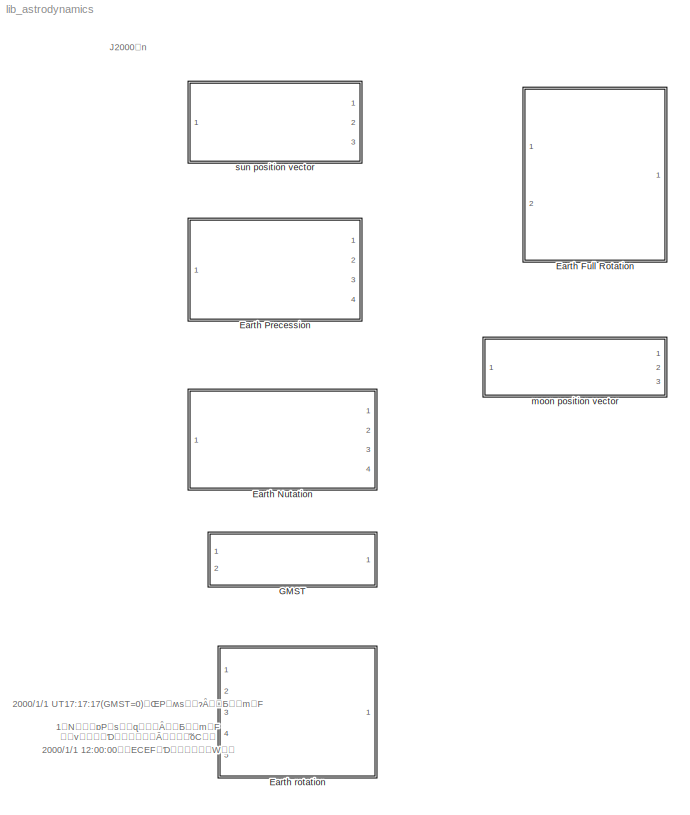
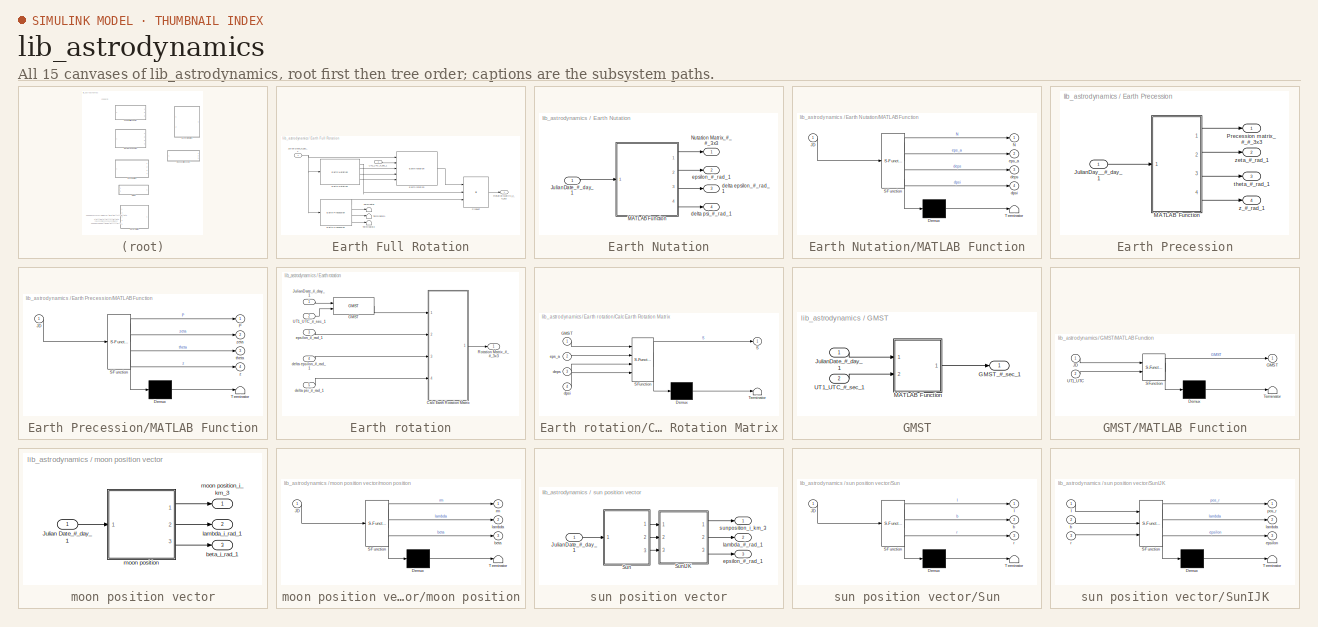
[diagram: thumbnail index - all 15 canvases of the model, root first then tree order]
MODEL lib_astrodynamics
KIND library
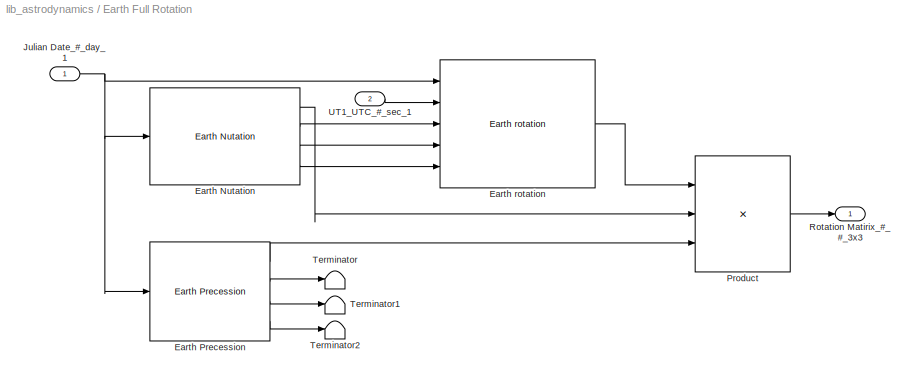
BLOCK [SubSystem] Earth Full Rotation
  FunctionWithSeparateData = off
  MaskHideContents = off
  MinAlgLoopOccurrences = off
  Opaque = off
  Ports = [2, 1]
  PropExecContextOutsideSubsystem = off
  RTWSystemCode = Auto
  RequestExecContextInheritance = off
  SID = 159
BLOCK [Reference] Earth Full Rotation/Earth Nutation  REF=lib_astrodynamics/Earth Nutation  (lib defined in mdl_a29f7b0aead9)
  FunctionWithSeparateData = off
  GeneratePreprocessorConditionals = off
  Ports = [1, 4]
  RTWMemSecDataConstants = Inherit from model
  RTWMemSecDataInternal = Inherit from model
  RTWMemSecDataParameters = Inherit from model
  RTWMemSecFuncExecute = Inherit from model
  RTWMemSecFuncInitTerm = Inherit from model
  SID = 167
  ShowPortLabels = FromPortIcon
  SourceBlock = lib_astrodynamics/Earth Nutation
  SourceType = SubSystem
  SystemSampleTime = -1
BLOCK [Reference] Earth Full Rotation/Earth Precession  REF=lib_astrodynamics/Earth Precession  (lib defined in mdl_a29f7b0aead9)
  FunctionWithSeparateData = off
  GeneratePreprocessorConditionals = off
  Ports = [1, 4]
  RTWMemSecDataConstants = Inherit from model
  RTWMemSecDataInternal = Inherit from model
  RTWMemSecDataParameters = Inherit from model
  RTWMemSecFuncExecute = Inherit from model
  RTWMemSecFuncInitTerm = Inherit from model
  SID = 169
  ShowPortLabels = FromPortIcon
  SourceBlock = lib_astrodynamics/Earth Precession
  SourceType = SubSystem
  SystemSampleTime = -1
BLOCK [Reference] Earth Full Rotation/Earth rotation  REF=lib_astrodynamics/Earth rotation  (lib defined in mdl_a29f7b0aead9)
  FunctionWithSeparateData = off
  GeneratePreprocessorConditionals = off
  Ports = [5, 1]
  RTWMemSecDataConstants = Inherit from model
  RTWMemSecDataInternal = Inherit from model
  RTWMemSecDataParameters = Inherit from model
  RTWMemSecFuncExecute = Inherit from model
  RTWMemSecFuncInitTerm = Inherit from model
  SID = 166
  ShowPortLabels = FromPortIcon
  SourceBlock = lib_astrodynamics/Earth rotation
  SourceType = SubSystem
  SystemSampleTime = -1
BLOCK [Inport] Earth Full Rotation/Julian Date_#_day_1
  IconDisplay = Port number
  SID = 160
BLOCK [Product] Earth Full Rotation/Product
  InputSameDT = off
  Inputs = 3
  Multiplication = Matrix(*)
  OutDataTypeStr = Inherit: Inherit via internal rule
  Ports = [3, 1]
  SID = 170
  SaturateOnIntegerOverflow = off
BLOCK [Outport] Earth Full Rotation/Rotation Matirix_#_#_3x3
  IconDisplay = Port number
  SID = 161
BLOCK [Terminator] Earth Full Rotation/Terminator
  SID = 171
BLOCK [Terminator] Earth Full Rotation/Terminator1
  SID = 172
BLOCK [Terminator] Earth Full Rotation/Terminator2
  SID = 173
BLOCK [Inport] Earth Full Rotation/UT1_UTC_#_sec_1
  IconDisplay = Port number
  Port = 2
  SID = 168
BLOCK [SubSystem] Earth Nutation
  FunctionWithSeparateData = off
  MaskHideContents = off
  MinAlgLoopOccurrences = off
  Opaque = off
  Ports = [1, 4]
  PropExecContextOutsideSubsystem = off
  RTWSystemCode = Auto
  RequestExecContextInheritance = off
  SID = 82
BLOCK [Inport] Earth Nutation/JulianDate_#_day_1
  IconDisplay = Port number
  SID = 83
BLOCK [SubSystem] Earth Nutation/MATLAB Function
  ErrorFcn = Stateflow.Translate.translate
  FunctionWithSeparateData = off
  MaskDescription = Embedded MATLAB block
  MaskDisplay = bgColor = Simulink.Root.ColorString2Rgb(get_param(gcbh, 'BackgroundColor')); image(imread('private/eml_membrane_16.png','png','BackgroundColor',bgColor(1:3)),'center'); disp([10 10 'Nutation']);
  MaskHideContents = off
  MaskIconFrame = on
  MaskIconOpaque = off
  MaskIconRotate = none
  MaskIconUnits = normalized
  MaskPortRotate = default
  MaskSelfModifiable = on
  MaskType = Stateflow
  MinAlgLoopOccurrences = off
  Opaque = off
  PermitHierarchicalResolution = ExplicitOnly
  Ports = [1, 4]
  PropExecContextOutsideSubsystem = off
  RTWSystemCode = Auto
  RequestExecContextInheritance = off
  SID = 84
  TreatAsAtomicUnit = on
BLOCK [Demux] Earth Nutation/MATLAB Function/ Demux 
  Outputs = 1
  Ports = [1, 1]
  SID = 84::24
BLOCK [S-Function] Earth Nutation/MATLAB Function/ SFunction 
  EnableBusSupport = off
  FunctionName = sf_sfun
  PortCounts = [1 5]
  Ports = [1, 5]
  SID = 84::23
  Tag = Stateflow S-Function lib_astrodynamics 3
BLOCK [Terminator] Earth Nutation/MATLAB Function/ Terminator 
  SID = 84::26
BLOCK [Inport] Earth Nutation/MATLAB Function/JD
  IconDisplay = Port number
  SID = 84::1
BLOCK [Outport] Earth Nutation/MATLAB Function/N
  IconDisplay = Port number
  SID = 84::5
BLOCK [Outport] Earth Nutation/MATLAB Function/deps
  IconDisplay = Port number
  Port = 3
  SID = 84::21
BLOCK [Outport] Earth Nutation/MATLAB Function/dpsi
  IconDisplay = Port number
  Port = 4
  SID = 84::22
BLOCK [Outport] Earth Nutation/MATLAB Function/eps_a
  IconDisplay = Port number
  Port = 2
  SID = 84::20
BLOCK [Outport] Earth Nutation/Nutation Matrix_#_#_3x3
  IconDisplay = Port number
  SID = 85
BLOCK [Outport] Earth Nutation/delta epsilon_#_rad_1
  IconDisplay = Port number
  Port = 3
  SID = 87
BLOCK [Outport] Earth Nutation/delta psi_#_rad_1
  IconDisplay = Port number
  Port = 4
  SID = 88
BLOCK [Outport] Earth Nutation/epsilon_#_rad_1
  IconDisplay = Port number
  Port = 2
  SID = 86
BLOCK [SubSystem] Earth Precession
  FunctionWithSeparateData = off
  MaskHideContents = off
  MinAlgLoopOccurrences = off
  Opaque = off
  Ports = [1, 4]
  PropExecContextOutsideSubsystem = off
  RTWSystemCode = Auto
  RequestExecContextInheritance = off
  SID = 89
BLOCK [Inport] Earth Precession/JulianDay__#_day_1
  IconDisplay = Port number
  SID = 90
BLOCK [SubSystem] Earth Precession/MATLAB Function
  ErrorFcn = Stateflow.Translate.translate
  FunctionWithSeparateData = off
  MaskDescription = Embedded MATLAB block
  MaskDisplay = bgColor = Simulink.Root.ColorString2Rgb(get_param(gcbh, 'BackgroundColor')); image(imread('private/eml_membrane_16.png','png','BackgroundColor',bgColor(1:3)),'center'); disp([10 10 'Precession']);
  MaskHideContents = off
  MaskIconFrame = on
  MaskIconOpaque = off
  MaskIconRotate = none
  MaskIconUnits = normalized
  MaskPortRotate = default
  MaskSelfModifiable = on
  MaskType = Stateflow
  MinAlgLoopOccurrences = off
  Opaque = off
  PermitHierarchicalResolution = ExplicitOnly
  Ports = [1, 4]
  PropExecContextOutsideSubsystem = off
  RTWSystemCode = Auto
  RequestExecContextInheritance = off
  SID = 91
  TreatAsAtomicUnit = on
BLOCK [Demux] Earth Precession/MATLAB Function/ Demux 
  Outputs = 1
  Ports = [1, 1]
  SID = 91::24
BLOCK [S-Function] Earth Precession/MATLAB Function/ SFunction 
  EnableBusSupport = off
  FunctionName = sf_sfun
  PortCounts = [1 5]
  Ports = [1, 5]
  SID = 91::23
  Tag = Stateflow S-Function lib_astrodynamics 1
BLOCK [Terminator] Earth Precession/MATLAB Function/ Terminator 
  SID = 91::26
BLOCK [Inport] Earth Precession/MATLAB Function/JD
  IconDisplay = Port number
  SID = 91::1
BLOCK [Outport] Earth Precession/MATLAB Function/P
  IconDisplay = Port number
  SID = 91::5
BLOCK [Outport] Earth Precession/MATLAB Function/theta
  IconDisplay = Port number
  Port = 3
  SID = 91::21
BLOCK [Outport] Earth Precession/MATLAB Function/z
  IconDisplay = Port number
  Port = 4
  SID = 91::22
BLOCK [Outport] Earth Precession/MATLAB Function/zeta
  IconDisplay = Port number
  Port = 2
  SID = 91::20
BLOCK [Outport] Earth Precession/Precession matrix_#_#_3x3
  IconDisplay = Port number
  SID = 92
BLOCK [Outport] Earth Precession/theta_#_rad_1
  IconDisplay = Port number
  Port = 3
  SID = 94
BLOCK [Outport] Earth Precession/z_#_rad_1
  IconDisplay = Port number
  Port = 4
  SID = 95
BLOCK [Outport] Earth Precession/zeta_#_rad_1
  IconDisplay = Port number
  Port = 2
  SID = 93
BLOCK [SubSystem] Earth rotation
  FunctionWithSeparateData = off
  MaskHideContents = off
  MinAlgLoopOccurrences = off
  Opaque = off
  Ports = [5, 1]
  PropExecContextOutsideSubsystem = off
  RTWSystemCode = Auto
  RequestExecContextInheritance = off
  SID = 134
BLOCK [SubSystem] Earth rotation/Calc Earth Rotation Matrix
  ErrorFcn = Stateflow.Translate.translate
  FunctionWithSeparateData = off
  MaskDescription = Embedded MATLAB block
  MaskDisplay = bgColor = Simulink.Root.ColorString2Rgb(get_param(gcbh, 'BackgroundColor')); image(imread('private/eml_membrane_16.png','png','BackgroundColor',bgColor(1:3)),'center'); disp([10 10 'fcn']);  <repeated x3 — deduplicated; at blocks: Calc Earth Rotation Matrix, Sun, SunIJK>
  MaskHideContents = off
  MaskIconFrame = on
  MaskIconOpaque = off
  MaskIconRotate = none
  MaskIconUnits = normalized
  MaskPortRotate = default
  MaskSelfModifiable = on
  MaskType = Stateflow
  MinAlgLoopOccurrences = off
  Opaque = off
  PermitHierarchicalResolution = ExplicitOnly
  Ports = [4, 1]
  PropExecContextOutsideSubsystem = off
  RTWSystemCode = Auto
  RequestExecContextInheritance = off
  SID = 140
  TreatAsAtomicUnit = on
BLOCK [Demux] Earth rotation/Calc Earth Rotation Matrix/ Demux 
  Outputs = 1
  Ports = [1, 1]
  SID = 140::22
BLOCK [S-Function] Earth rotation/Calc Earth Rotation Matrix/ SFunction 
  EnableBusSupport = off
  FunctionName = sf_sfun
  PortCounts = [4 2]
  Ports = [4, 2]
  SID = 140::21
  Tag = Stateflow S-Function lib_astrodynamics 4
BLOCK [Terminator] Earth rotation/Calc Earth Rotation Matrix/ Terminator 
  SID = 140::24
BLOCK [Inport] Earth rotation/Calc Earth Rotation Matrix/GMST
  IconDisplay = Port number
  SID = 140::1
BLOCK [Outport] Earth rotation/Calc Earth Rotation Matrix/S
  IconDisplay = Port number
  SID = 140::5
BLOCK [Inport] Earth rotation/Calc Earth Rotation Matrix/deps
  IconDisplay = Port number
  Port = 3
  SID = 140::19
BLOCK [Inport] Earth rotation/Calc Earth Rotation Matrix/dpsi
  IconDisplay = Port number
  Port = 4
  SID = 140::20
BLOCK [Inport] Earth rotation/Calc Earth Rotation Matrix/eps_a
  IconDisplay = Port number
  Port = 2
  SID = 140::18
BLOCK [Reference] Earth rotation/GMST  REF=lib_astrodynamics/GMST  (lib defined in mdl_a29f7b0aead9)
  Ports = [2, 1]
  SID = 141
  SourceBlock = lib_astrodynamics/GMST
  SourceType = SubSystem
BLOCK [Inport] Earth rotation/JulianDate_#_day_1
  IconDisplay = Port number
  SID = 135
BLOCK [Outport] Earth rotation/Rotation Matrix_#_#_3x3
  IconDisplay = Port number
  SID = 142
BLOCK [Inport] Earth rotation/UT1_UTC_#_sec_1
  IconDisplay = Port number
  Port = 2
  SID = 136
BLOCK [Inport] Earth rotation/delta epsilon_#_rad_1
  IconDisplay = Port number
  Port = 4
  SID = 138
BLOCK [Inport] Earth rotation/delta psi_#_rad_1
  IconDisplay = Port number
  Port = 5
  SID = 139
BLOCK [Inport] Earth rotation/epsilon_#_rad_1
  IconDisplay = Port number
  Port = 3
  SID = 137
BLOCK [SubSystem] GMST
  FunctionWithSeparateData = off
  MaskHideContents = off
  MinAlgLoopOccurrences = off
  Opaque = off
  Ports = [2, 1]
  PropExecContextOutsideSubsystem = off
  RTWSystemCode = Auto
  RequestExecContextInheritance = off
  SID = 110
BLOCK [Outport] GMST/GMST_#_sec_1
  IconDisplay = Port number
  SID = 114
BLOCK [Inport] GMST/JulianDate_#_day_1
  IconDisplay = Port number
  SID = 111
BLOCK [SubSystem] GMST/MATLAB Function
  ErrorFcn = Stateflow.Translate.translate
  FunctionWithSeparateData = off
  MaskDescription = Embedded MATLAB block
  MaskDisplay = bgColor = Simulink.Root.ColorString2Rgb(get_param(gcbh, 'BackgroundColor')); image(imread('private/eml_membrane_16.png','png','BackgroundColor',bgColor(1:3)),'center'); disp([10 10 'GMST']);
  MaskHideContents = off
  MaskIconFrame = on
  MaskIconOpaque = off
  MaskIconRotate = none
  MaskIconUnits = normalized
  MaskPortRotate = default
  MaskSelfModifiable = on
  MaskType = Stateflow
  MinAlgLoopOccurrences = off
  Opaque = off
  PermitHierarchicalResolution = ExplicitOnly
  Ports = [2, 1]
  PropExecContextOutsideSubsystem = off
  RTWSystemCode = Auto
  RequestExecContextInheritance = off
  SID = 113
  TreatAsAtomicUnit = on
BLOCK [Demux] GMST/MATLAB Function/ Demux 
  Outputs = 1
  Ports = [1, 1]
  SID = 113::20
BLOCK [S-Function] GMST/MATLAB Function/ SFunction 
  EnableBusSupport = off
  FunctionName = sf_sfun
  PortCounts = [2 2]
  Ports = [2, 2]
  SID = 113::19
  Tag = Stateflow S-Function lib_astrodynamics 5
BLOCK [Terminator] GMST/MATLAB Function/ Terminator 
  SID = 113::22
BLOCK [Outport] GMST/MATLAB Function/GMST
  IconDisplay = Port number
  SID = 113::5
BLOCK [Inport] GMST/MATLAB Function/JD
  IconDisplay = Port number
  SID = 113::1
BLOCK [Inport] GMST/MATLAB Function/UT1_UTC
  IconDisplay = Port number
  Port = 2
  SID = 113::18
BLOCK [Inport] GMST/UT1_UTC_#_sec_1
  IconDisplay = Port number
  Port = 2
  SID = 112
BLOCK [SubSystem] moon position vector
  FunctionWithSeparateData = off
  MaskHideContents = off
  MinAlgLoopOccurrences = off
  Opaque = off
  Ports = [1, 3]
  PropExecContextOutsideSubsystem = off
  RTWSystemCode = Auto
  RequestExecContextInheritance = off
  SID = 200
BLOCK [Inport] moon position vector/Julian Date_#_day_1
  IconDisplay = Port number
  SID = 201
BLOCK [Outport] moon position vector/beta_i_rad_1
  IconDisplay = Port number
  Port = 3
  SID = 206
BLOCK [Outport] moon position vector/lambda_i_rad_1
  IconDisplay = Port number
  Port = 2
  SID = 204
BLOCK [SubSystem] moon position vector/moon position
  ErrorFcn = Stateflow.Translate.translate
  FunctionWithSeparateData = off
  MaskDescription = Embedded MATLAB block
  MaskDisplay = bgColor = Simulink.Root.ColorString2Rgb(get_param(gcbh, 'BackgroundColor')); image(imread('private/eml_membrane_16.png','png','BackgroundColor',bgColor(1:3)),'center'); disp([10 10 'moon_position']);
  MaskHideContents = off
  MaskIconFrame = on
  MaskIconOpaque = off
  MaskIconRotate = none
  MaskIconUnits = normalized
  MaskPortRotate = default
  MaskSelfModifiable = on
  MaskType = Stateflow
  MinAlgLoopOccurrences = off
  Opaque = off
  PermitHierarchicalResolution = ExplicitOnly
  Ports = [1, 3]
  PropExecContextOutsideSubsystem = off
  RTWSystemCode = Auto
  RequestExecContextInheritance = off
  SID = 203
  TreatAsAtomicUnit = on
BLOCK [Demux] moon position vector/moon position/ Demux 
  Outputs = 1
  Ports = [1, 1]
  SID = 203::21
BLOCK [S-Function] moon position vector/moon position/ SFunction 
  EnableBusSupport = off
  FunctionName = sf_sfun
  PortCounts = [1 4]
  Ports = [1, 4]
  SID = 203::20
  Tag = Stateflow S-Function lib_astrodynamics 6
BLOCK [Terminator] moon position vector/moon position/ Terminator 
  SID = 203::23
BLOCK [Inport] moon position vector/moon position/JD
  IconDisplay = Port number
  SID = 203::1
BLOCK [Outport] moon position vector/moon position/beta
  IconDisplay = Port number
  Port = 3
  SID = 203::19
BLOCK [Outport] moon position vector/moon position/lambda
  IconDisplay = Port number
  Port = 2
  SID = 203::18
BLOCK [Outport] moon position vector/moon position/rm
  IconDisplay = Port number
  SID = 203::5
BLOCK [Outport] moon position vector/moon position_i_km_3
  IconDisplay = Port number
  SID = 202
BLOCK [SubSystem] sun position vector
  FunctionWithSeparateData = off
  MaskHideContents = off
  MinAlgLoopOccurrences = off
  Opaque = off
  Ports = [1, 3]
  PropExecContextOutsideSubsystem = off
  RTWSystemCode = Auto
  RequestExecContextInheritance = off
  SID = 115
BLOCK [Inport] sun position vector/JulianDate_#_day_1
  IconDisplay = Port number
  SID = 116
BLOCK [SubSystem] sun position vector/Sun
  ErrorFcn = Stateflow.Translate.translate
  FunctionWithSeparateData = off
  MaskDescription = Embedded MATLAB block
  MaskHideContents = off
  MaskIconFrame = on
  MaskIconOpaque = off
  MaskIconRotate = none
  MaskIconUnits = normalized
  MaskPortRotate = default
  MaskSelfModifiable = on
  MaskType = Stateflow
  MinAlgLoopOccurrences = off
  Opaque = off
  PermitHierarchicalResolution = ExplicitOnly
  Ports = [1, 3]
  PropExecContextOutsideSubsystem = off
  RTWSystemCode = Auto
  RequestExecContextInheritance = off
  SID = 117
  TreatAsAtomicUnit = on
BLOCK [Demux] sun position vector/Sun/ Demux 
  Outputs = 1
  Ports = [1, 1]
  SID = 117::21
BLOCK [S-Function] sun position vector/Sun/ SFunction 
  EnableBusSupport = off
  FunctionName = sf_sfun
  PortCounts = [1 4]
  Ports = [1, 4]
  SID = 117::20
  Tag = Stateflow S-Function lib_astrodynamics 45
BLOCK [Terminator] sun position vector/Sun/ Terminator 
  SID = 117::23
BLOCK [Inport] sun position vector/Sun/JD
  IconDisplay = Port number
  SID = 117::1
BLOCK [Outport] sun position vector/Sun/b
  IconDisplay = Port number
  Port = 2
  SID = 117::18
BLOCK [Outport] sun position vector/Sun/l
  IconDisplay = Port number
  SID = 117::5
BLOCK [Outport] sun position vector/Sun/r
  IconDisplay = Port number
  Port = 3
  SID = 117::19
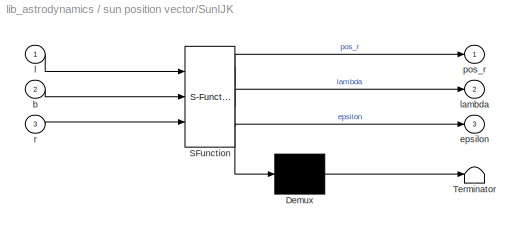
BLOCK [SubSystem] sun position vector/SunIJK
  ErrorFcn = Stateflow.Translate.translate
  FunctionWithSeparateData = off
  MaskDescription = Embedded MATLAB block
  MaskHideContents = off
  MaskIconFrame = on
  MaskIconOpaque = off
  MaskIconRotate = none
  MaskIconUnits = normalized
  MaskPortRotate = default
  MaskSelfModifiable = on
  MaskType = Stateflow
  MinAlgLoopOccurrences = off
  Opaque = off
  PermitHierarchicalResolution = ExplicitOnly
  Ports = [3, 3]
  PropExecContextOutsideSubsystem = off
  RTWSystemCode = Auto
  RequestExecContextInheritance = off
  SID = 118
  TreatAsAtomicUnit = on
BLOCK [Demux] sun position vector/SunIJK/ Demux 
  Outputs = 1
  Ports = [1, 1]
  SID = 118::23
BLOCK [S-Function] sun position vector/SunIJK/ SFunction 
  EnableBusSupport = off
  FunctionName = sf_sfun
  PortCounts = [3 4]
  Ports = [3, 4]
  SID = 118::22
  Tag = Stateflow S-Function lib_astrodynamics 2
BLOCK [Terminator] sun position vector/SunIJK/ Terminator 
  SID = 118::25
BLOCK [Inport] sun position vector/SunIJK/b
  IconDisplay = Port number
  Port = 2
  SID = 118::19
BLOCK [Outport] sun position vector/SunIJK/epsilon
  IconDisplay = Port number
  Port = 3
  SID = 118::21
BLOCK [Inport] sun position vector/SunIJK/l
  IconDisplay = Port number
  SID = 118::1
BLOCK [Outport] sun position vector/SunIJK/lambda
  IconDisplay = Port number
  Port = 2
  SID = 118::20
BLOCK [Outport] sun position vector/SunIJK/pos_r
  IconDisplay = Port number
  SID = 118::5
BLOCK [Inport] sun position vector/SunIJK/r
  IconDisplay = Port number
  Port = 3
  SID = 118::18
BLOCK [Outport] sun position vector/epsilon_#_rad_1
  IconDisplay = Port number
  Port = 3
  SID = 121
BLOCK [Outport] sun position vector/lambda_#_rad_1
  IconDisplay = Port number
  Port = 2
  SID = 120
BLOCK [Outport] sun position vector/sunposition_i_km_3
  IconDisplay = Port number
  SID = 119
ANNOTATION (root): 2000/1/1 UT17:17:17(GMST=0)ÅPÊsñÉÈé±ÆðmF\n1NÉPsñÉß­Èé±ÆðmF\n2000/1/1 12:00:00ÉECEFÆµ«ÀWª\nêv·éÆ¨á¢µÄ¢½ÌÅC³
ANNOTATION (root): J2000n
LINE Earth Full Rotation/Earth Nutation:1 -> Earth Full Rotation/Product:2
LINE Earth Full Rotation/Earth Nutation:2 -> Earth Full Rotation/Earth rotation:3
LINE Earth Full Rotation/Earth Nutation:3 -> Earth Full Rotation/Earth rotation:4
LINE Earth Full Rotation/Earth Nutation:4 -> Earth Full Rotation/Earth rotation:5
LINE Earth Full Rotation/Earth Precession:1 -> Earth Full Rotation/Product:3
LINE Earth Full Rotation/Earth Precession:2 -> Earth Full Rotation/Terminator:1
LINE Earth Full Rotation/Earth Precession:3 -> Earth Full Rotation/Terminator1:1
LINE Earth Full Rotation/Earth Precession:4 -> Earth Full Rotation/Terminator2:1
LINE Earth Full Rotation/Earth rotation:1 -> Earth Full Rotation/Product:1
NET Earth Full Rotation/Julian Date_#_day_1:1 -> Earth Full Rotation/Earth Nutation:1, Earth Full Rotation/Earth Precession:1, Earth Full Rotation/Earth rotation:1
LINE Earth Full Rotation/Product:1 -> Earth Full Rotation/Rotation Matirix_#_#_3x3:1
LINE Earth Full Rotation/UT1_UTC_#_sec_1:1 -> Earth Full Rotation/Earth rotation:2
LINE Earth Nutation/JulianDate_#_day_1:1 -> Earth Nutation/MATLAB Function:1
LINE Earth Nutation/MATLAB Function/ Demux :1 -> Earth Nutation/MATLAB Function/ Terminator :1
LINE Earth Nutation/MATLAB Function/ SFunction :1 -> Earth Nutation/MATLAB Function/ Demux :1
LINE Earth Nutation/MATLAB Function/ SFunction :2 -> Earth Nutation/MATLAB Function/N:1
LINE Earth Nutation/MATLAB Function/ SFunction :3 -> Earth Nutation/MATLAB Function/eps_a:1
LINE Earth Nutation/MATLAB Function/ SFunction :4 -> Earth Nutation/MATLAB Function/deps:1
LINE Earth Nutation/MATLAB Function/ SFunction :5 -> Earth Nutation/MATLAB Function/dpsi:1
LINE Earth Nutation/MATLAB Function/JD:1 -> Earth Nutation/MATLAB Function/ SFunction :1
LINE Earth Nutation/MATLAB Function:1 -> Earth Nutation/Nutation Matrix_#_#_3x3:1
LINE Earth Nutation/MATLAB Function:2 -> Earth Nutation/epsilon_#_rad_1:1
LINE Earth Nutation/MATLAB Function:3 -> Earth Nutation/delta epsilon_#_rad_1:1
LINE Earth Nutation/MATLAB Function:4 -> Earth Nutation/delta psi_#_rad_1:1
LINE Earth Precession/JulianDay__#_day_1:1 -> Earth Precession/MATLAB Function:1
LINE Earth Precession/MATLAB Function/ Demux :1 -> Earth Precession/MATLAB Function/ Terminator :1
LINE Earth Precession/MATLAB Function/ SFunction :1 -> Earth Precession/MATLAB Function/ Demux :1
LINE Earth Precession/MATLAB Function/ SFunction :2 -> Earth Precession/MATLAB Function/P:1
LINE Earth Precession/MATLAB Function/ SFunction :3 -> Earth Precession/MATLAB Function/zeta:1
LINE Earth Precession/MATLAB Function/ SFunction :4 -> Earth Precession/MATLAB Function/theta:1
LINE Earth Precession/MATLAB Function/ SFunction :5 -> Earth Precession/MATLAB Function/z:1
LINE Earth Precession/MATLAB Function/JD:1 -> Earth Precession/MATLAB Function/ SFunction :1
LINE Earth Precession/MATLAB Function:1 -> Earth Precession/Precession matrix_#_#_3x3:1
LINE Earth Precession/MATLAB Function:2 -> Earth Precession/zeta_#_rad_1:1
LINE Earth Precession/MATLAB Function:3 -> Earth Precession/theta_#_rad_1:1
LINE Earth Precession/MATLAB Function:4 -> Earth Precession/z_#_rad_1:1
LINE Earth rotation/Calc Earth Rotation Matrix/ Demux :1 -> Earth rotation/Calc Earth Rotation Matrix/ Terminator :1
LINE Earth rotation/Calc Earth Rotation Matrix/ SFunction :1 -> Earth rotation/Calc Earth Rotation Matrix/ Demux :1
LINE Earth rotation/Calc Earth Rotation Matrix/ SFunction :2 -> Earth rotation/Calc Earth Rotation Matrix/S:1
LINE Earth rotation/Calc Earth Rotation Matrix/GMST:1 -> Earth rotation/Calc Earth Rotation Matrix/ SFunction :1
LINE Earth rotation/Calc Earth Rotation Matrix/deps:1 -> Earth rotation/Calc Earth Rotation Matrix/ SFunction :3
LINE Earth rotation/Calc Earth Rotation Matrix/dpsi:1 -> Earth rotation/Calc Earth Rotation Matrix/ SFunction :4
LINE Earth rotation/Calc Earth Rotation Matrix/eps_a:1 -> Earth rotation/Calc Earth Rotation Matrix/ SFunction :2
LINE Earth rotation/Calc Earth Rotation Matrix:1 -> Earth rotation/Rotation Matrix_#_#_3x3:1
LINE Earth rotation/GMST:1 -> Earth rotation/Calc Earth Rotation Matrix:1
LINE Earth rotation/JulianDate_#_day_1:1 -> Earth rotation/GMST:1
LINE Earth rotation/UT1_UTC_#_sec_1:1 -> Earth rotation/GMST:2
LINE Earth rotation/delta epsilon_#_rad_1:1 -> Earth rotation/Calc Earth Rotation Matrix:3
LINE Earth rotation/delta psi_#_rad_1:1 -> Earth rotation/Calc Earth Rotation Matrix:4
LINE Earth rotation/epsilon_#_rad_1:1 -> Earth rotation/Calc Earth Rotation Matrix:2
LINE GMST/JulianDate_#_day_1:1 -> GMST/MATLAB Function:1
LINE GMST/MATLAB Function/ Demux :1 -> GMST/MATLAB Function/ Terminator :1
LINE GMST/MATLAB Function/ SFunction :1 -> GMST/MATLAB Function/ Demux :1
LINE GMST/MATLAB Function/ SFunction :2 -> GMST/MATLAB Function/GMST:1
LINE GMST/MATLAB Function/JD:1 -> GMST/MATLAB Function/ SFunction :1
LINE GMST/MATLAB Function/UT1_UTC:1 -> GMST/MATLAB Function/ SFunction :2
LINE GMST/MATLAB Function:1 -> GMST/GMST_#_sec_1:1
LINE GMST/UT1_UTC_#_sec_1:1 -> GMST/MATLAB Function:2
LINE moon position vector/Julian Date_#_day_1:1 -> moon position vector/moon position:1
LINE moon position vector/moon position/ Demux :1 -> moon position vector/moon position/ Terminator :1
LINE moon position vector/moon position/ SFunction :1 -> moon position vector/moon position/ Demux :1
LINE moon position vector/moon position/ SFunction :2 -> moon position vector/moon position/rm:1
LINE moon position vector/moon position/ SFunction :3 -> moon position vector/moon position/lambda:1
LINE moon position vector/moon position/ SFunction :4 -> moon position vector/moon position/beta:1
LINE moon position vector/moon position/JD:1 -> moon position vector/moon position/ SFunction :1
LINE moon position vector/moon position:1 -> moon position vector/moon position_i_km_3:1
LINE moon position vector/moon position:2 -> moon position vector/lambda_i_rad_1:1
LINE moon position vector/moon position:3 -> moon position vector/beta_i_rad_1:1
LINE sun position vector/JulianDate_#_day_1:1 -> sun position vector/Sun:1
LINE sun position vector/Sun/ Demux :1 -> sun position vector/Sun/ Terminator :1
LINE sun position vector/Sun/ SFunction :1 -> sun position vector/Sun/ Demux :1
LINE sun position vector/Sun/ SFunction :2 -> sun position vector/Sun/l:1
LINE sun position vector/Sun/ SFunction :3 -> sun position vector/Sun/b:1
LINE sun position vector/Sun/ SFunction :4 -> sun position vector/Sun/r:1
LINE sun position vector/Sun/JD:1 -> sun position vector/Sun/ SFunction :1
LINE sun position vector/Sun:1 -> sun position vector/SunIJK:1
LINE sun position vector/Sun:2 -> sun position vector/SunIJK:2
LINE sun position vector/Sun:3 -> sun position vector/SunIJK:3
LINE sun position vector/SunIJK/ Demux :1 -> sun position vector/SunIJK/ Terminator :1
LINE sun position vector/SunIJK/ SFunction :1 -> sun position vector/SunIJK/ Demux :1
LINE sun position vector/SunIJK/ SFunction :2 -> sun position vector/SunIJK/pos_r:1
LINE sun position vector/SunIJK/ SFunction :3 -> sun position vector/SunIJK/lambda:1
LINE sun position vector/SunIJK/ SFunction :4 -> sun position vector/SunIJK/epsilon:1
LINE sun position vector/SunIJK/b:1 -> sun position vector/SunIJK/ SFunction :2
LINE sun position vector/SunIJK/l:1 -> sun position vector/SunIJK/ SFunction :1
LINE sun position vector/SunIJK/r:1 -> sun position vector/SunIJK/ SFunction :3
LINE sun position vector/SunIJK:1 -> sun position vector/sunposition_i_km_3:1
LINE sun position vector/SunIJK:2 -> sun position vector/lambda_#_rad_1:1
LINE sun position vector/SunIJK:3 -> sun position vector/epsilon_#_rad_1:1
note: NET lines group one-source signal fan-out (src -> all destinations, sorted); 1:1 wires keep LINE
CHART Earth Precession/MATLAB Function states=1 transitions=1
  STATE_LABEL 'eML_blk_kernel()'
CHART sun position vector/SunIJK states=1 transitions=1
  STATE_LABEL 'eML_blk_kernel()'
CHART Earth Nutation/MATLAB Function states=1 transitions=1
  STATE_LABEL 'eML_blk_kernel()'
CHART Earth rotation/Calc Earth Rotation Matrix states=1 transitions=1
  STATE_LABEL 'eML_blk_kernel()'
CHART GMST/MATLAB Function states=1 transitions=1
  STATE_LABEL 'eML_blk_kernel()'
CHART moon position vector/moon position states=1 transitions=1
  STATE_LABEL 'eML_blk_kernel()'
CHART sun position vector/Sun states=1 transitions=1
  STATE_LABEL 'eML_blk_kernel()'
